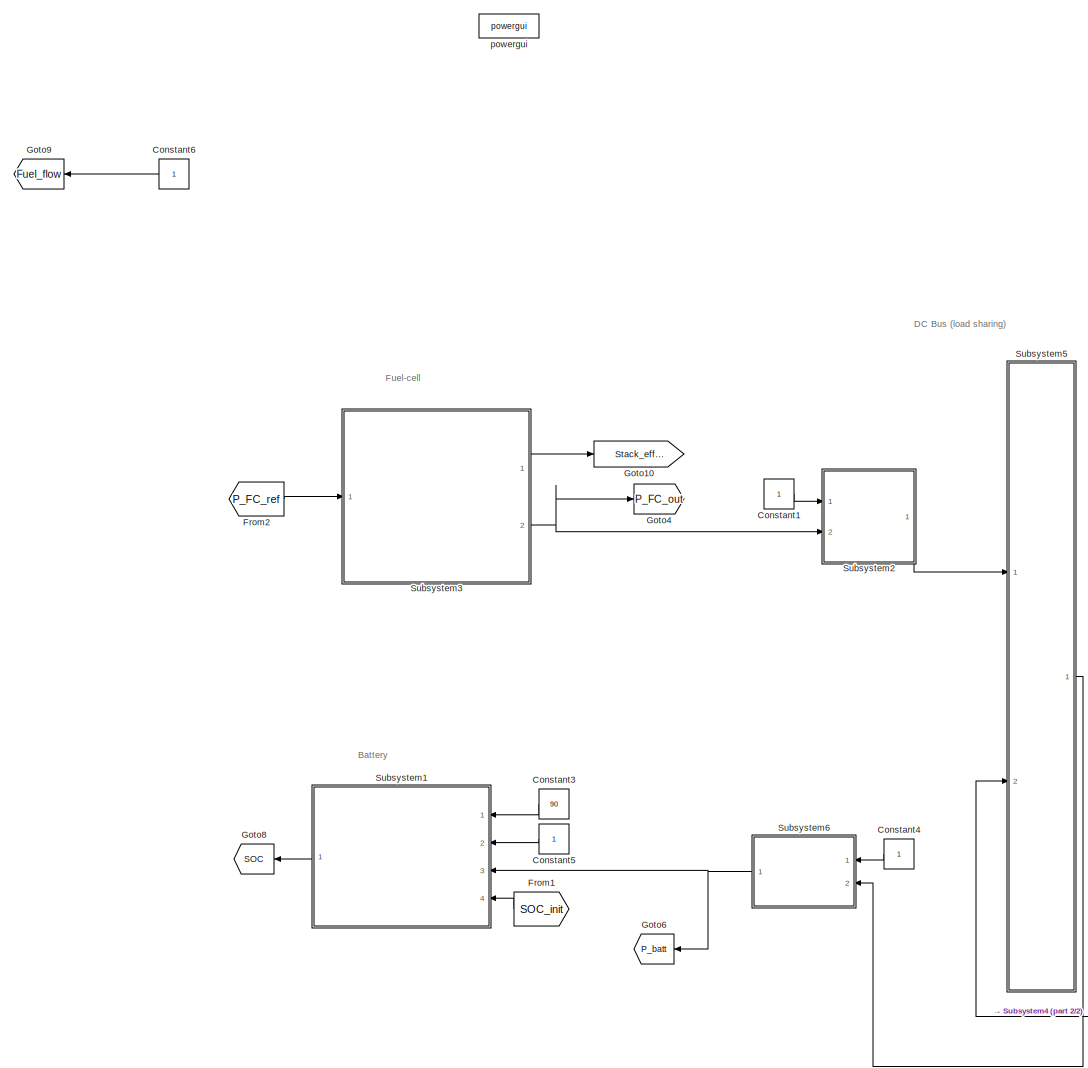
[diagram: root canvas - part 1/2, left side, full height]
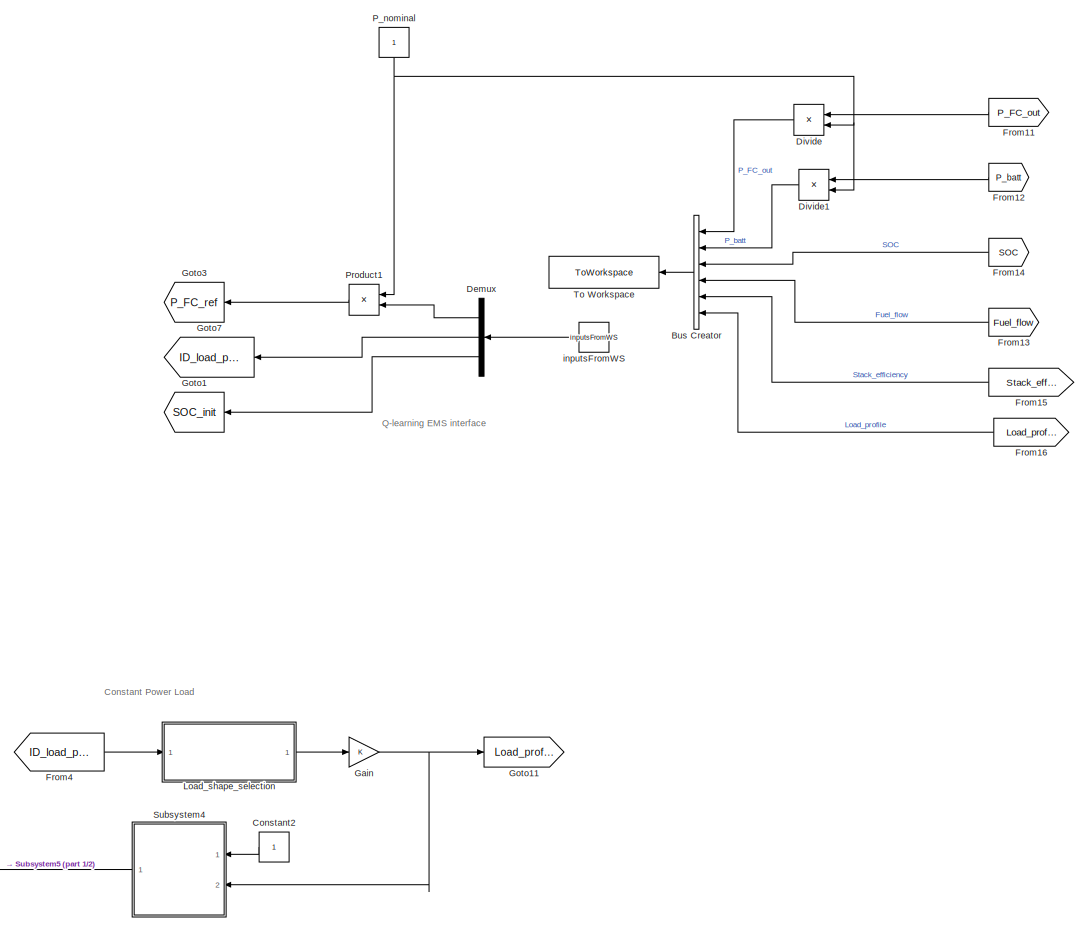
[diagram: root canvas - part 2/2, right side, full height]
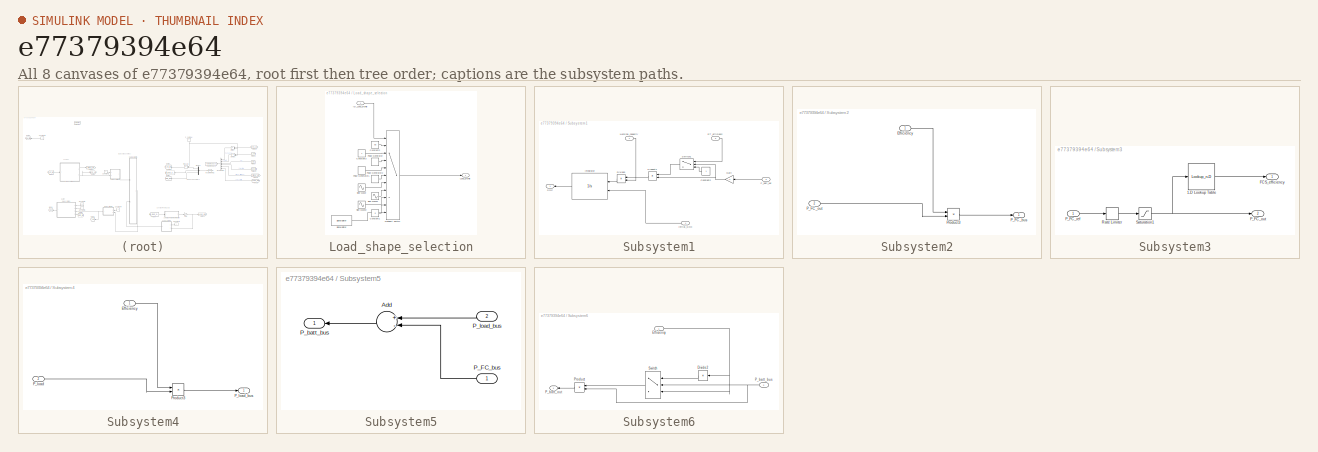
[diagram: thumbnail index - all 8 canvases of the model, root first then tree order]
MODEL slx_e77379394e64
KIND model
CONFIG AbsTol = auto
CONFIG EnableMultiTasking = off
CONFIG FixedStep = auto
CONFIG MaxStep = auto
CONFIG MinStep = auto
CONFIG RelTol = 1e-3
CONFIG SampleTimeConstraint = Unconstrained
CONFIG Solver = VariableStepAuto
CONFIG SolverName = VariableStepAuto
CONFIG StartTime = 0.0
CONFIG StopTime = 10
BLOCK [BusCreator] Bus Creator
  DisplayOption = bar
  InheritFromInputs = on
  Inputs = 6
  Ports = [6, 1]
BLOCK [Constant] Constant1
BLOCK [Constant] Constant2
BLOCK [Constant] Constant3
  Value = 90
BLOCK [Constant] Constant4
BLOCK [Constant] Constant5
BLOCK [Constant] Constant6
BLOCK [Demux] Demux
  DisplayOption = bar
  Outputs = 3
  Ports = [1, 3]
BLOCK [Product] Divide
  InputSameDT = off
  Inputs = */
  OutDataTypeStr = Inherit: Inherit via internal rule
  Ports = [2, 1]
  RndMeth = Floor
  SaturateOnIntegerOverflow = off
BLOCK [Product] Divide1
  InputSameDT = off
  Inputs = */
  OutDataTypeStr = Inherit: Inherit via internal rule
  Ports = [2, 1]
  RndMeth = Floor
  SaturateOnIntegerOverflow = off
BLOCK [From] From1
  GotoTag = SOC_init
BLOCK [From] From11
  GotoTag = P_FC_out
BLOCK [From] From12
  GotoTag = P_batt
BLOCK [From] From13
  GotoTag = Fuel_flow
BLOCK [From] From14
  GotoTag = SOC
BLOCK [From] From15
  GotoTag = Stack_efficiency
BLOCK [From] From16
  GotoTag = Load_profile
BLOCK [From] From2
  GotoTag = P_FC_ref
BLOCK [From] From4
  GotoTag = ID_load_profile
BLOCK [Gain] Gain
  OutDataTypeStr = Inherit: Inherit via internal rule
  ParamDataTypeStr = Inherit: Inherit via internal rule
  SaturateOnIntegerOverflow = off
BLOCK [Goto] Goto1
  GotoTag = SOC_init
BLOCK [Goto] Goto10
  GotoTag = Stack_efficiency
BLOCK [Goto] Goto11
  GotoTag = Load_profile
BLOCK [Goto] Goto3
  GotoTag = P_FC_ref
BLOCK [Goto] Goto4
  GotoTag = P_FC_out
BLOCK [Goto] Goto6
  GotoTag = P_batt
BLOCK [Goto] Goto7
  GotoTag = ID_load_profile
BLOCK [Goto] Goto8
  GotoTag = SOC
BLOCK [Goto] Goto9
  GotoTag = Fuel_flow
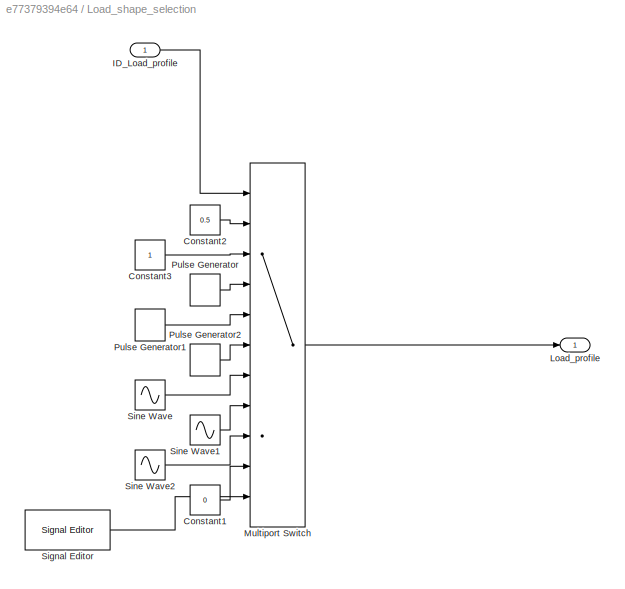
BLOCK [SubSystem] Load_shape_selection
  Ports = [1, 1]
  RequestExecContextInheritance = off
BLOCK [Constant] Load_shape_selection/Constant1
  Value = 0
BLOCK [Constant] Load_shape_selection/Constant2
  Value = 0.5
BLOCK [Constant] Load_shape_selection/Constant3
BLOCK [Inport] Load_shape_selection/ID_Load_profile
  IconDisplay = Port number
BLOCK [Outport] Load_shape_selection/Load_profile
  IconDisplay = Port number
BLOCK [MultiPortSwitch] Load_shape_selection/Multiport Switch
  DataPortIndices = {1,2,3,4,5,6,7,8,9,10}
  DataPortOrder = Specify indices
  InputSameDT = off
  Ports = [11, 1]
  SaturateOnIntegerOverflow = off
BLOCK [DiscretePulseGenerator] Load_shape_selection/Pulse Generator
  Period = 1
  PhaseDelay = 10
  Ports = [0, 1]
  PulseType = Time based
  PulseWidth = 50
BLOCK [DiscretePulseGenerator] Load_shape_selection/Pulse Generator1
  Period = 5
  PhaseDelay = 10
  Ports = [0, 1]
  PulseType = Time based
  PulseWidth = 50
BLOCK [DiscretePulseGenerator] Load_shape_selection/Pulse Generator2
  Period = 60
  PhaseDelay = 10
  Ports = [0, 1]
  PulseType = Time based
  PulseWidth = 50
BLOCK [Reference] Load_shape_selection/Signal Editor  REF=SignalEditorBlockLib/Signal Editor
  Ports = [0, 1]
  SourceBlock = SignalEditorBlockLib/Signal Editor
  SourceType = SignalEditor
  UserDataPersistent = on
BLOCK [Sin] Load_shape_selection/Sine Wave
  Amplitude = 0.5
  Bias = 0.5
  Frequency = 2*pi
  Phase = -pi/2
  Ports = [0, 1]
  SampleTime = 0
BLOCK [Sin] Load_shape_selection/Sine Wave1
  Amplitude = 0.5
  Bias = 0.5
  Frequency = 2*pi/5
  Phase = -pi/2
  Ports = [0, 1]
  SampleTime = 0
BLOCK [Sin] Load_shape_selection/Sine Wave2
  Amplitude = 0.5
  Bias = 0.5
  Frequency = 2*pi/60
  Phase = -pi/2
  Ports = [0, 1]
  SampleTime = 0
BLOCK [Constant] P_nominal
BLOCK [Product] Product1
  InputSameDT = off
  OutDataTypeStr = Inherit: Inherit via internal rule
  Ports = [2, 1]
  RndMeth = Floor
  SaturateOnIntegerOverflow = off
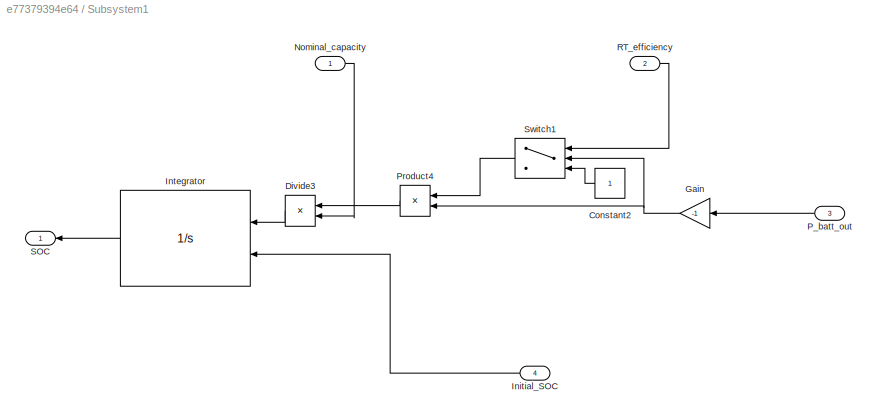
BLOCK [SubSystem] Subsystem1
  Ports = [4, 1]
  RequestExecContextInheritance = off
BLOCK [Constant] Subsystem1/Constant2
BLOCK [Product] Subsystem1/Divide3
  InputSameDT = off
  Inputs = */
  OutDataTypeStr = Inherit: Inherit via internal rule
  Ports = [2, 1]
  RndMeth = Floor
  SaturateOnIntegerOverflow = off
BLOCK [Gain] Subsystem1/Gain
  Gain = -1
  OutDataTypeStr = Inherit: Inherit via internal rule
  ParamDataTypeStr = Inherit: Inherit via internal rule
  SaturateOnIntegerOverflow = off
BLOCK [Inport] Subsystem1/Initial_SOC
  IconDisplay = Port number
  Port = 4
BLOCK [Integrator] Subsystem1/Integrator
  InitialConditionSource = external
  LimitOutput = on
  LowerSaturationLimit = 0
  Ports = [2, 1]
  UpperSaturationLimit = 1
BLOCK [Inport] Subsystem1/Nominal_capacity
  IconDisplay = Port number
BLOCK [Inport] Subsystem1/P_batt_out
  IconDisplay = Port number
  Port = 3
BLOCK [Product] Subsystem1/Product4
  InputSameDT = off
  OutDataTypeStr = Inherit: Inherit via internal rule
  Ports = [2, 1]
  RndMeth = Floor
  SaturateOnIntegerOverflow = off
BLOCK [Inport] Subsystem1/RT_efficiency
  IconDisplay = Port number
  Port = 2
BLOCK [Outport] Subsystem1/SOC
  IconDisplay = Port number
BLOCK [Switch] Subsystem1/Switch1
  Criteria = u2 > Threshold
  InputSameDT = off
  SaturateOnIntegerOverflow = off
BLOCK [SubSystem] Subsystem2
  Ports = [2, 1]
  RequestExecContextInheritance = off
BLOCK [Inport] Subsystem2/Efficiency
  IconDisplay = Port number
BLOCK [Outport] Subsystem2/P_FC_bus
  IconDisplay = Port number
BLOCK [Inport] Subsystem2/P_FC_out
  IconDisplay = Port number
  Port = 2
BLOCK [Product] Subsystem2/Product3
  InputSameDT = off
  OutDataTypeStr = Inherit: Inherit via internal rule
  Ports = [2, 1]
  RndMeth = Floor
  SaturateOnIntegerOverflow = off
BLOCK [SubSystem] Subsystem3
  Ports = [1, 2]
  RequestExecContextInheritance = off
BLOCK [Lookup_n-D] Subsystem3/1-D Lookup Table
  BreakpointsForDimension1 = [0.000 0.025 0.050 0.075 0.100 0.125 0.150 0.175 0.200 0.225 0.250 0.275 0.300 0.325 0.350 0.375 0.400 0.425 0.450 0.475 0.500 0.525 0.550 0.575 0.600 0.625 0.650 0.675 0.700 0.725 0.750 0.775 0.800 0.825 0.850 0.875 0.900 0.925 0.950 0.975 1.000 ]
  BreakpointsForDimension1FirstPoint = 0
  BreakpointsForDimension1Spacing = 0.05
  ExtrapMethod = Cubic spline
  InternalRulePriority = Speed
  InterpMethod = Cubic spline
  NumberOfTableDimensions = 1
  Ports = [1, 1]
  RndMeth = Simplest
  Table = [0.000 21.539 37.437 48.565 55.795 60.000 62.052 62.822 63.165 63.495 63.787 64.000 64.100 64.095 64.000 63.832 63.602 63.321 63.000 62.649 62.271 61.868 61.444 61.000 60.537 60.050 59.531 58.974 58.371 57.715 57.000 56.218 55.362 54.424 53.399 52.278 51.056 49.723 48.275 46.703 45.000 ]
BLOCK [Outport] Subsystem3/FCS_efficiency
  IconDisplay = Port number
BLOCK [Outport] Subsystem3/P_FC_out
  IconDisplay = Port number
  Port = 2
BLOCK [Inport] Subsystem3/P_FC_ref
  IconDisplay = Port number
BLOCK [RateLimiter] Subsystem3/Rate Limiter
  FallingSlewLimit = -0.0769
  RisingSlewLimit = 0.0769
  SampleTimeMode = inherited
BLOCK [Saturate] Subsystem3/Saturation1
  InputPortMap = u0
  LowerLimit = 0.1
  Ports = [1, 1]
  UpperLimit = 1
BLOCK [SubSystem] Subsystem4
  Ports = [2, 1]
  RequestExecContextInheritance = off
BLOCK [Inport] Subsystem4/Efficiency
  IconDisplay = Port number
BLOCK [Inport] Subsystem4/P_load
  IconDisplay = Port number
  Port = 2
BLOCK [Outport] Subsystem4/P_load_bus
  IconDisplay = Port number
BLOCK [Product] Subsystem4/Product3
  InputSameDT = off
  OutDataTypeStr = Inherit: Inherit via internal rule
  Ports = [2, 1]
  RndMeth = Floor
  SaturateOnIntegerOverflow = off
BLOCK [SubSystem] Subsystem5
  Ports = [2, 1]
  RequestExecContextInheritance = off
BLOCK [Sum] Subsystem5/Add
  InputSameDT = off
  Inputs = +-
  OutDataTypeStr = Inherit: Inherit via internal rule
  Ports = [2, 1]
  SaturateOnIntegerOverflow = off
BLOCK [Inport] Subsystem5/P_FC_bus
  IconDisplay = Port number
BLOCK [Outport] Subsystem5/P_batt_bus
  IconDisplay = Port number
BLOCK [Inport] Subsystem5/P_load_bus
  IconDisplay = Port number
  Port = 2
BLOCK [SubSystem] Subsystem6
  Ports = [2, 1]
  RequestExecContextInheritance = off
BLOCK [Product] Subsystem6/Divide2
  InputSameDT = off
  Inputs = /
  OutDataTypeStr = Inherit: Inherit via internal rule
  Ports = [1, 1]
  RndMeth = Floor
  SaturateOnIntegerOverflow = off
BLOCK [Inport] Subsystem6/Efficiency
  IconDisplay = Port number
BLOCK [Inport] Subsystem6/P_batt_bus
  IconDisplay = Port number
  Port = 2
BLOCK [Outport] Subsystem6/P_batt_out
  IconDisplay = Port number
BLOCK [Product] Subsystem6/Product
  InputSameDT = off
  OutDataTypeStr = Inherit: Inherit via internal rule
  Ports = [2, 1]
  RndMeth = Floor
  SaturateOnIntegerOverflow = off
BLOCK [Switch] Subsystem6/Switch
  Criteria = u2 > Threshold
  InputSameDT = off
  SaturateOnIntegerOverflow = off
BLOCK [ToWorkspace] To Workspace
  FixptAsFi = on
  MaxDataPoints = inf
  Ports = [1]
  SampleTime = -1
  Save2DSignal = 3-D array (concatenate along third dimension)
  SaveFormat = Timeseries
  VariableName = outputsToWS
BLOCK [Constant] inputsFromWS
  Value = inputsFromWS
BLOCK [Reference] powergui  REF=powerlib/powergui
  Ports = []
  SourceBlock = powerlib/powergui
  SourceProductBaseCode = PS
  SourceProductName = Simscape Power Systems
  SourceType = PSB option menu block
ANNOTATION (root): Battery
ANNOTATION (root): Constant Power Load
ANNOTATION (root): DC Bus (load sharing)
ANNOTATION (root): Fuel-cell
ANNOTATION (root): Q-learning EMS interface
LINE Bus Creator:1 -> To Workspace:1
LINE Constant1:1 -> Subsystem2:1
LINE Constant2:1 -> Subsystem4:1
LINE Constant3:1 -> Subsystem1:1
LINE Constant4:1 -> Subsystem6:1
LINE Constant5:1 -> Subsystem1:2
LINE Constant6:1 -> Goto9:1
LINE Demux:1 -> Product1:2
LINE Demux:2 -> Goto7:1
LINE Demux:3 -> Goto1:1
LINE Divide1:1 -> Bus Creator:2
LINE Divide:1 -> Bus Creator:1
LINE From11:1 -> Divide:1
LINE From12:1 -> Divide1:1
LINE From13:1 -> Bus Creator:4
LINE From14:1 -> Bus Creator:3
LINE From15:1 -> Bus Creator:5
LINE From16:1 -> Bus Creator:6
LINE From1:1 -> Subsystem1:4
LINE From2:1 -> Subsystem3:1
LINE From4:1 -> Load_shape_selection:1
NET Gain:1 -> Goto11:1, Subsystem4:2
LINE Load_shape_selection/Constant1:1 -> Load_shape_selection/Multiport Switch:10
LINE Load_shape_selection/Constant2:1 -> Load_shape_selection/Multiport Switch:2
LINE Load_shape_selection/Constant3:1 -> Load_shape_selection/Multiport Switch:3
LINE Load_shape_selection/ID_Load_profile:1 -> Load_shape_selection/Multiport Switch:1
LINE Load_shape_selection/Multiport Switch:1 -> Load_shape_selection/Load_profile:1
LINE Load_shape_selection/Pulse Generator1:1 -> Load_shape_selection/Multiport Switch:5
LINE Load_shape_selection/Pulse Generator2:1 -> Load_shape_selection/Multiport Switch:6
LINE Load_shape_selection/Pulse Generator:1 -> Load_shape_selection/Multiport Switch:4
LINE Load_shape_selection/Signal Editor:1 -> Load_shape_selection/Multiport Switch:11
LINE Load_shape_selection/Sine Wave1:1 -> Load_shape_selection/Multiport Switch:8
LINE Load_shape_selection/Sine Wave2:1 -> Load_shape_selection/Multiport Switch:9
LINE Load_shape_selection/Sine Wave:1 -> Load_shape_selection/Multiport Switch:7
LINE Load_shape_selection:1 -> Gain:1
NET P_nominal:1 -> Divide1:2, Divide:2, Product1:1
LINE Product1:1 -> Goto3:1
LINE Subsystem1/Constant2:1 -> Subsystem1/Switch1:3
LINE Subsystem1/Divide3:1 -> Subsystem1/Integrator:1
NET Subsystem1/Gain:1 -> Subsystem1/Product4:2, Subsystem1/Switch1:2
LINE Subsystem1/Initial_SOC:1 -> Subsystem1/Integrator:2
LINE Subsystem1/Integrator:1 -> Subsystem1/SOC:1
LINE Subsystem1/Nominal_capacity:1 -> Subsystem1/Divide3:2
LINE Subsystem1/P_batt_out:1 -> Subsystem1/Gain:1
LINE Subsystem1/Product4:1 -> Subsystem1/Divide3:1
LINE Subsystem1/RT_efficiency:1 -> Subsystem1/Switch1:1
LINE Subsystem1/Switch1:1 -> Subsystem1/Product4:1
LINE Subsystem1:1 -> Goto8:1
LINE Subsystem2/Efficiency:1 -> Subsystem2/Product3:1
LINE Subsystem2/P_FC_out:1 -> Subsystem2/Product3:2
LINE Subsystem2/Product3:1 -> Subsystem2/P_FC_bus:1
LINE Subsystem2:1 -> Subsystem5:1
LINE Subsystem3/1-D Lookup Table:1 -> Subsystem3/FCS_efficiency:1
LINE Subsystem3/P_FC_ref:1 -> Subsystem3/Rate Limiter:1
LINE Subsystem3/Rate Limiter:1 -> Subsystem3/Saturation1:1
NET Subsystem3/Saturation1:1 -> Subsystem3/1-D Lookup Table:1, Subsystem3/P_FC_out:1
LINE Subsystem3:1 -> Goto10:1
NET Subsystem3:2 -> Goto4:1, Subsystem2:2
LINE Subsystem4/Efficiency:1 -> Subsystem4/Product3:1
LINE Subsystem4/P_load:1 -> Subsystem4/Product3:2
LINE Subsystem4/Product3:1 -> Subsystem4/P_load_bus:1
LINE Subsystem4:1 -> Subsystem5:2
LINE Subsystem5/Add:1 -> Subsystem5/P_batt_bus:1
LINE Subsystem5/P_FC_bus:1 -> Subsystem5/Add:2
LINE Subsystem5/P_load_bus:1 -> Subsystem5/Add:1
LINE Subsystem5:1 -> Subsystem6:2
LINE Subsystem6/Divide2:1 -> Subsystem6/Switch:1
NET Subsystem6/Efficiency:1 -> Subsystem6/Divide2:1, Subsystem6/Switch:3
NET Subsystem6/P_batt_bus:1 -> Subsystem6/Product:2, Subsystem6/Switch:2
LINE Subsystem6/Product:1 -> Subsystem6/P_batt_out:1
LINE Subsystem6/Switch:1 -> Subsystem6/Product:1
NET Subsystem6:1 -> Goto6:1, Subsystem1:3
LINE inputsFromWS:1 -> Demux:1
note: NET lines group one-source signal fan-out (src -> all destinations, sorted); 1:1 wires keep LINE
